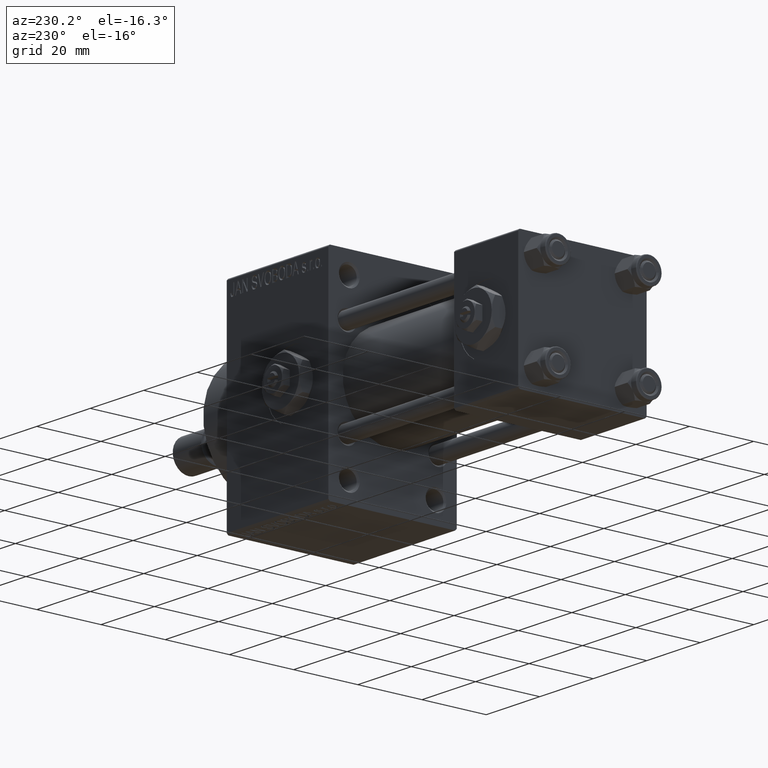
[diagram: clean part render]
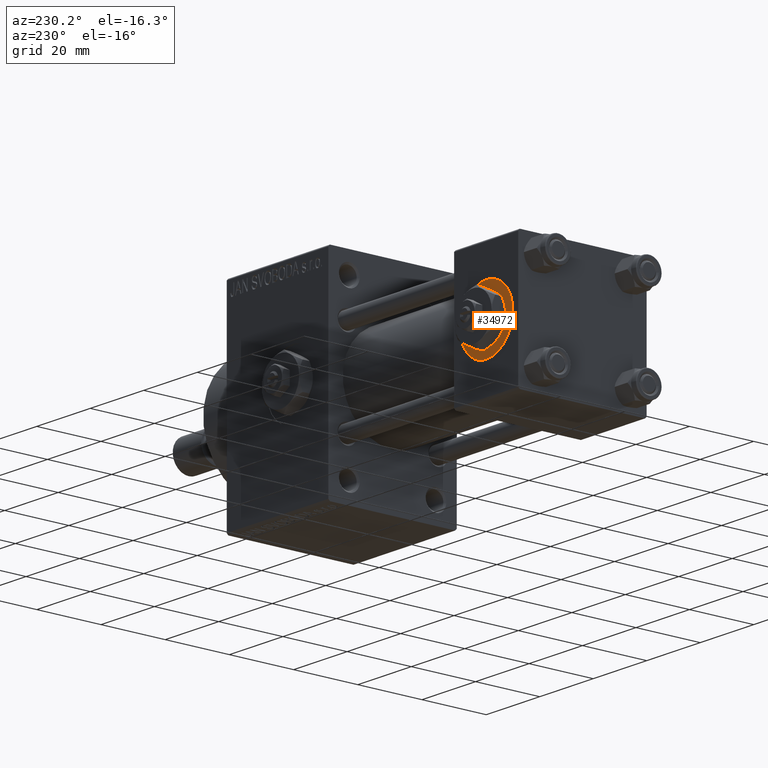
[diagram: same view with one face highlighted and labeled with its STEP entity id]
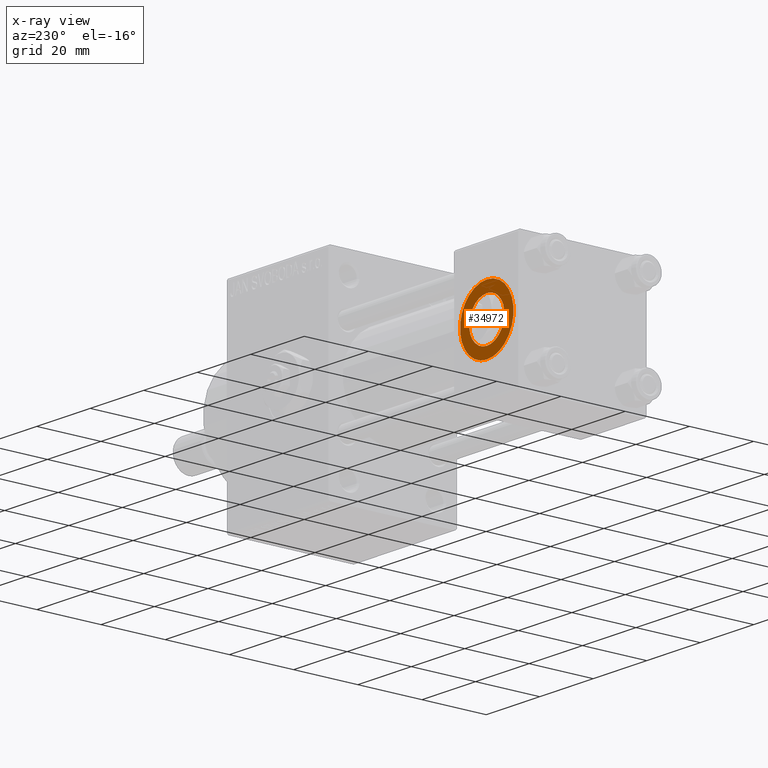
[diagram: x-ray of the same camera — body ghosted, the highlighted face saturated]
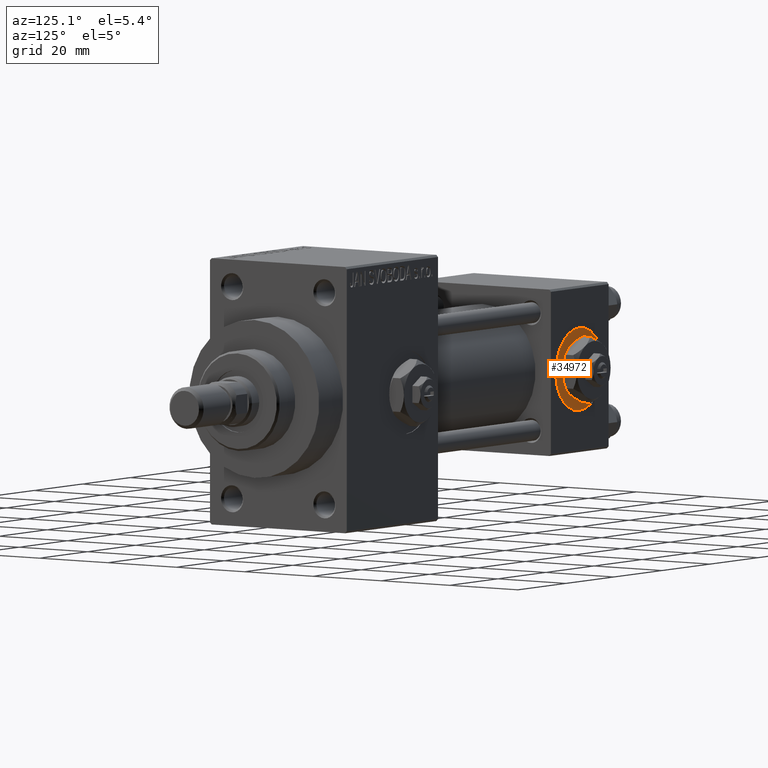
[diagram: same view with one face highlighted and labeled with its STEP entity id]
A machine part, auxiliary view. The second image highlights one B-rep face of the part: STEP entity #34972.
The next image is the same camera in x-ray: the body ghosted, the highlighted face saturated — about 0% of this face is hidden behind the body in this view.
A second angle (auxiliary view) of the same face is appended — the face is thin or edge-on in the first view.
In plain terms, the highlighted planar face has unit normal (0, 1, 0).
Its self-contained STEP definition (entity closure, byte-faithful):
#1868 = EDGE_CURVE ( 'NONE', #25718, #37488, #18025, .T. ) ;
#3447 = VERTEX_POINT ( 'NONE', #18723 ) ;
#5611 = CARTESIAN_POINT ( 'NONE',  ( 12.00000000000000000, 19.80000000000000071, 10.00000000000000000 ) ) ;
#6019 = CARTESIAN_POINT ( 'NONE',  ( 12.00000000000000000, 19.80000000000000071, 0.000000000000000000 ) ) ;
#7980 = CARTESIAN_POINT ( 'NONE',  ( 12.00000000000000000, 19.80000000000000071, 0.000000000000000000 ) ) ;
#10363 = EDGE_CURVE ( 'NONE', #3447, #22664, #37625, .T. ) ;
#10723 = DIRECTION ( 'NONE',  ( 0.000000000000000000, 0.000000000000000000, 1.000000000000000000 ) ) ;
#10830 = AXIS2_PLACEMENT_3D ( 'NONE', #7980, #18507, #10723 ) ;
#14463 = AXIS2_PLACEMENT_3D ( 'NONE', #26159, #22418, #26417 ) ;
#15573 = ORIENTED_EDGE ( 'NONE', *, *, #1868, .F. ) ;
#18025 = CIRCLE ( 'NONE', #31628, 6.579999999999998295 ) ;
#18030 = DIRECTION ( 'NONE',  ( 0.000000000000000000, 1.000000000000000000, 0.000000000000000000 ) ) ;
#18273 = ORIENTED_EDGE ( 'NONE', *, *, #41791, .F. ) ;
#18507 = DIRECTION ( 'NONE',  ( 0.000000000000000000, 1.000000000000000000, 0.000000000000000000 ) ) ;
#18723 = CARTESIAN_POINT ( 'NONE',  ( 12.00000000000000178, 19.80000000000000071, -10.00000000000000000 ) ) ;
#22418 = DIRECTION ( 'NONE',  ( 0.000000000000000000, 1.000000000000000000, 0.000000000000000000 ) ) ;
#22664 = VERTEX_POINT ( 'NONE', #5611 ) ;
#25718 = VERTEX_POINT ( 'NONE', #37294 ) ;
#26159 = CARTESIAN_POINT ( 'NONE',  ( 12.00000000000000000, 19.80000000000000071, 0.000000000000000000 ) ) ;
#26417 = DIRECTION ( 'NONE',  ( 0.000000000000000000, 0.000000000000000000, 1.000000000000000000 ) ) ;
#26884 = EDGE_LOOP ( 'NONE', ( #15573, #18273 ) ) ;
#27032 = DIRECTION ( 'NONE',  ( 0.000000000000000000, -0.000000000000000000, 1.000000000000000000 ) ) ;
#27284 = ORIENTED_EDGE ( 'NONE', *, *, #10363, .T. ) ;
#30535 = DIRECTION ( 'NONE',  ( 0.000000000000000000, 1.000000000000000000, 0.000000000000000000 ) ) ;
#31084 = DIRECTION ( 'NONE',  ( 0.000000000000000000, 0.000000000000000000, 1.000000000000000000 ) ) ;
#31628 = AXIS2_PLACEMENT_3D ( 'NONE', #6019, #18030, #44310 ) ;
#32427 = CIRCLE ( 'NONE', #10830, 6.579999999999998295 ) ;
#34606 = DIRECTION ( 'NONE',  ( 0.000000000000000000, 1.000000000000000000, 0.000000000000000000 ) ) ;
#34972 = ADVANCED_FACE ( 'NONE', ( #38317, #41796 ), #49036, .T. ) ;
#36062 = CIRCLE ( 'NONE', #14463, 10.00000000000000000 ) ;
#36379 = EDGE_CURVE ( 'NONE', #22664, #3447, #36062, .T. ) ;
#37294 = CARTESIAN_POINT ( 'NONE',  ( 12.00000000000000000, 19.80000000000000071, 6.579999999999998295 ) ) ;
#37488 = VERTEX_POINT ( 'NONE', #38456 ) ;
#37625 = CIRCLE ( 'NONE', #47974, 10.00000000000000000 ) ;
#38317 = FACE_BOUND ( 'NONE', #26884, .T. ) ;
#38456 = CARTESIAN_POINT ( 'NONE',  ( 12.00000000000000000, 19.80000000000000071, -6.579999999999998295 ) ) ;
#41791 = EDGE_CURVE ( 'NONE', #37488, #25718, #32427, .T. ) ;
#41796 = FACE_OUTER_BOUND ( 'NONE', #46092, .T. ) ;
#42095 = CARTESIAN_POINT ( 'NONE',  ( 12.00000000000000000, 19.80000000000000071, 0.000000000000000000 ) ) ;
#44310 = DIRECTION ( 'NONE',  ( 0.000000000000000000, 0.000000000000000000, 1.000000000000000000 ) ) ;
#45041 = CARTESIAN_POINT ( 'NONE',  ( 12.00000000000000000, 19.80000000000000071, 0.000000000000000000 ) ) ;
#45544 = ORIENTED_EDGE ( 'NONE', *, *, #36379, .T. ) ;
#46092 = EDGE_LOOP ( 'NONE', ( #45544, #27284 ) ) ;
#47974 = AXIS2_PLACEMENT_3D ( 'NONE', #42095, #34606, #31084 ) ;
#47990 = AXIS2_PLACEMENT_3D ( 'NONE', #45041, #30535, #27032 ) ;
#49036 = PLANE ( 'NONE',  #47990 ) ;